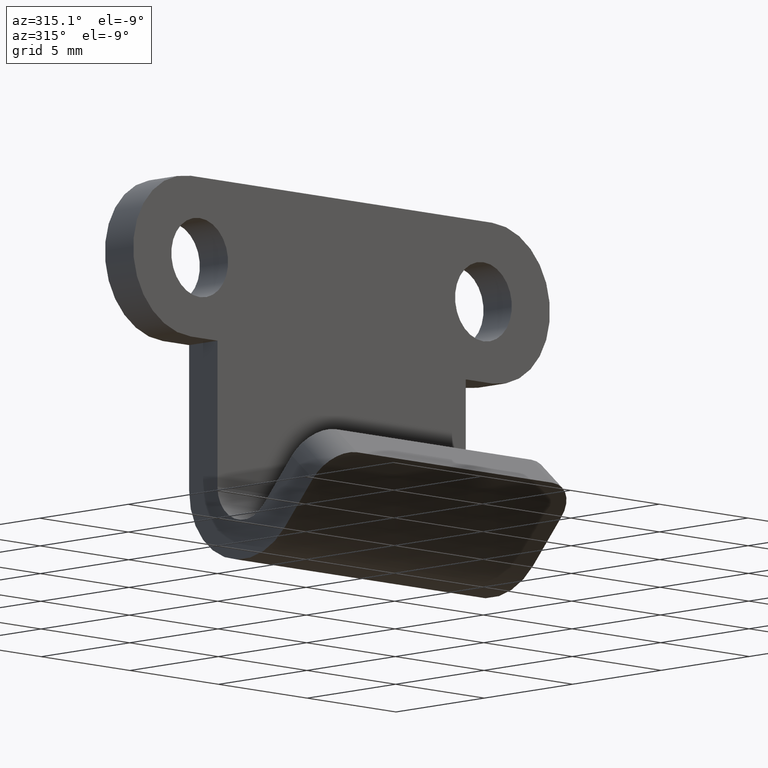
[diagram: clean part render]
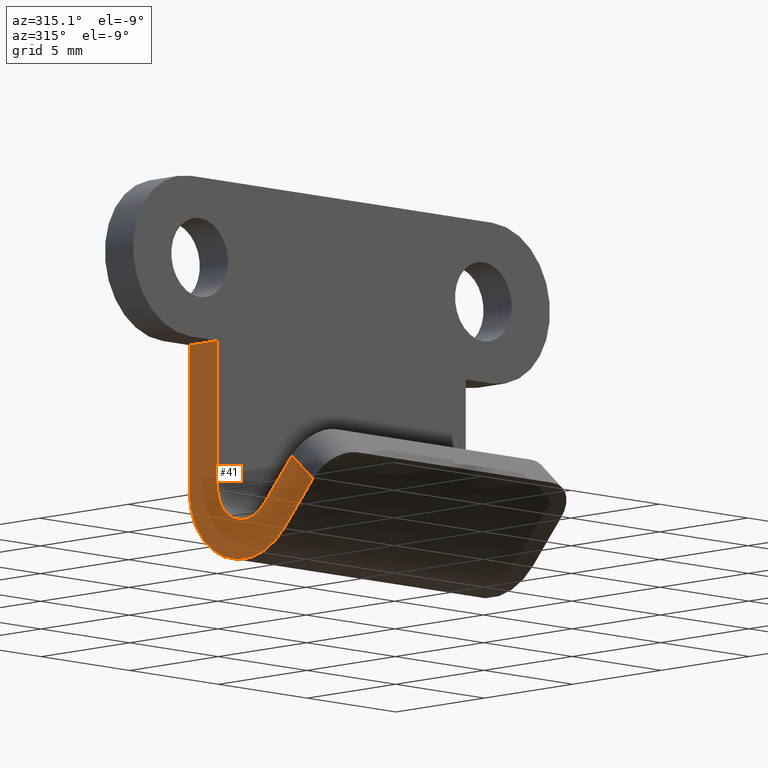
[diagram: same view with one face highlighted and labeled with its STEP entity id]
A machine part, auxiliary view. The second image highlights one B-rep face of the part: STEP entity #41.
In plain terms, the highlighted planar face has unit normal (-1, 0, 0).
Its self-contained STEP definition (entity closure, byte-faithful):
#41=ADVANCED_FACE('',(#71),#70,.T.);
#70=PLANE('',#272);
#71=FACE_OUTER_BOUND('',#273,.T.);
#269=CARTESIAN_POINT('',(-1.50000000000E+01,2.30015658058E+00,-1.37632308630E+01));
#270=DIRECTION('',(-1.00000000000E+00,0.00000000000E+00,3.92320173035E-13));
#271=DIRECTION('',(0.00000000000E+00,-1.00000000000E+00,0.00000000000E+00));
#272=AXIS2_PLACEMENT_3D('',#269,#270,#271);
#273=EDGE_LOOP('',(#372,#373,#374,#375,#376,#377,#378,#379));
#372=ORIENTED_EDGE('',*,*,#480,.T.);
#373=ORIENTED_EDGE('',*,*,#481,.T.);
#374=ORIENTED_EDGE('',*,*,#482,.T.);
#375=ORIENTED_EDGE('',*,*,#483,.F.);
#376=ORIENTED_EDGE('',*,*,#484,.T.);
#377=ORIENTED_EDGE('',*,*,#485,.F.);
#378=ORIENTED_EDGE('',*,*,#486,.T.);
#379=ORIENTED_EDGE('',*,*,#479,.F.);
#479=EDGE_CURVE('',#545,#530,#552,.T.);
#480=EDGE_CURVE('',#545,#558,#559,.T.);
#481=EDGE_CURVE('',#558,#565,#566,.T.);
#482=EDGE_CURVE('',#565,#572,#573,.T.);
#483=EDGE_CURVE('',#579,#572,#580,.T.);
#484=EDGE_CURVE('',#579,#586,#587,.T.);
#485=EDGE_CURVE('',#593,#586,#594,.T.);
#486=EDGE_CURVE('',#593,#530,#600,.T.);
#530=VERTEX_POINT('',#890);
#545=VERTEX_POINT('',#900);
#552=LINE('',#905,#906);
#558=VERTEX_POINT('',#908);
#559=LINE('',#909,#910);
#565=VERTEX_POINT('',#912);
#566=CIRCLE('',#916,1.50000000000E+00);
#572=VERTEX_POINT('',#917);
#573=LINE('',#918,#919);
#579=VERTEX_POINT('',#921);
#580=LINE('',#922,#923);
#586=VERTEX_POINT('',#925);
#587=LINE('',#926,#927);
#593=VERTEX_POINT('',#929);
#594=CIRCLE('',#933,3.10000000000E+00);
#600=LINE('',#934,#935);
#890=CARTESIAN_POINT('',(-1.50000000000E+01,-5.40156580574E+00,-9.43451684951E+00));
#900=CARTESIAN_POINT('',(-1.50000000000E+01,-4.20798408523E+00,-8.36898286298E+00));
#905=CARTESIAN_POINT('',(-1.50000000000E+01,-4.20798408522E+00,-8.36898286302E+00));
#906=VECTOR('',#907,1.59999999998E+00);
#907=DIRECTION('',(-2.49800180544E-13,-7.45988575320E-01,-6.65958741584E-01));
#908=CARTESIAN_POINT('',(-1.50000000000E+01,-2.61898286298E+00,-1.01489381124E+01));
#909=CARTESIAN_POINT('',(-1.50000000000E+01,-4.20798408523E+00,-8.36898286298E+00));
#910=VECTOR('',#911,2.38603553497E+00);
#911=DIRECTION('',(-2.93325302354E-13,6.65958741584E-01,-7.45988575320E-01));
#912=CARTESIAN_POINT('',(-1.50000000000E+01,2.16840434497E-16,-9.15000000000E+00));
#913=CARTESIAN_POINT('',(-1.50000000000E+01,-1.50000000000E+00,-9.15000000000E+00));
#914=DIRECTION('',(1.00000000000E+00,-1.54356114616E-14,-4.04153551887E-13));
#915=DIRECTION('',(2.80664380625E-13,7.45988575320E-01,6.65958741584E-01));
#916=AXIS2_PLACEMENT_3D('',#913,#914,#915);
#917=CARTESIAN_POINT('',(-1.50000000000E+01,0.00000000000E+00,-3.25000000000E+00));
#918=CARTESIAN_POINT('',(-1.50000000000E+01,0.00000000000E+00,-9.15000000000E+00));
#919=VECTOR('',#920,5.90000000000E+00);
#920=DIRECTION('',(3.89895272377E-13,0.00000000000E+00,1.00000000000E+00));
#921=CARTESIAN_POINT('',(-1.50000000000E+01,1.60000000000E+00,-3.25000000000E+00));
#922=CARTESIAN_POINT('',(-1.50000000000E+01,1.60000000001E+00,-3.25000000000E+00));
#923=VECTOR('',#924,1.60000000001E+00);
#924=DIRECTION('',(0.00000000000E+00,-1.00000000000E+00,0.00000000000E+00));
#925=CARTESIAN_POINT('',(-1.50000000000E+01,1.60000000000E+00,-9.15000000000E+00));
#926=CARTESIAN_POINT('',(-1.50000000000E+01,1.60000000000E+00,-3.25000000000E+00));
#927=VECTOR('',#928,5.90000000000E+00);
#928=DIRECTION('',(-3.89895272377E-13,0.00000000000E+00,-1.00000000000E+00));
#929=CARTESIAN_POINT('',(-1.50000000000E+01,-3.81256458349E+00,-1.12144720989E+01));
#930=CARTESIAN_POINT('',(-1.50000000000E+01,-1.50000000000E+00,-9.15000000000E+00));
#931=DIRECTION('',(1.00000000000E+00,-1.85444217780E-15,-3.79098154421E-13));
#932=DIRECTION('',(2.53847122534E-13,7.45988575320E-01,6.65958741584E-01));
#933=AXIS2_PLACEMENT_3D('',#930,#931,#932);
#934=CARTESIAN_POINT('',(-1.50000000000E+01,-3.81256458349E+00,-1.12144720989E+01));
#935=VECTOR('',#936,2.38603553497E+00);
#936=DIRECTION('',(2.93325302354E-13,-6.65958741584E-01,7.45988575320E-01));